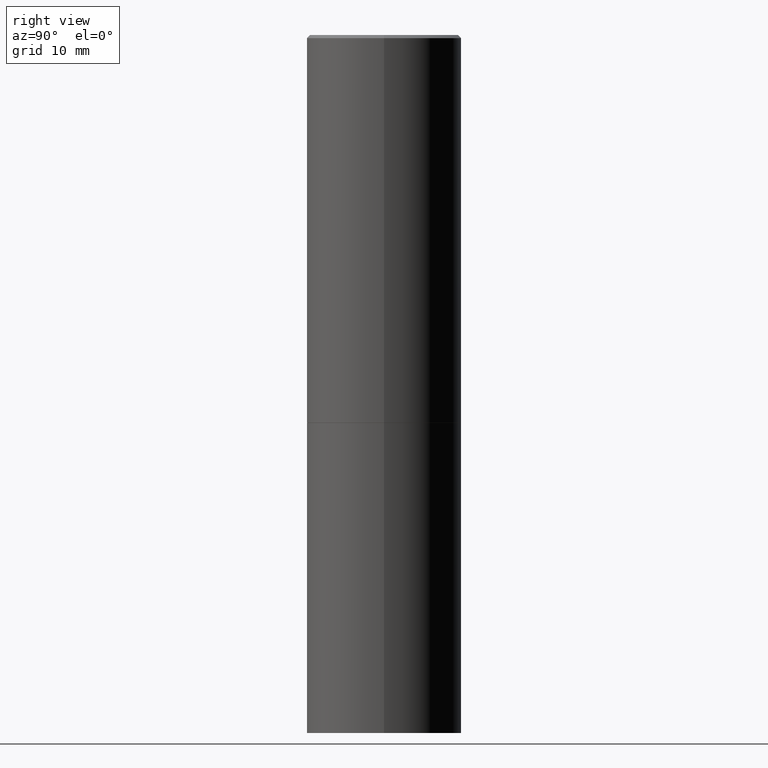
[diagram: clean part render]
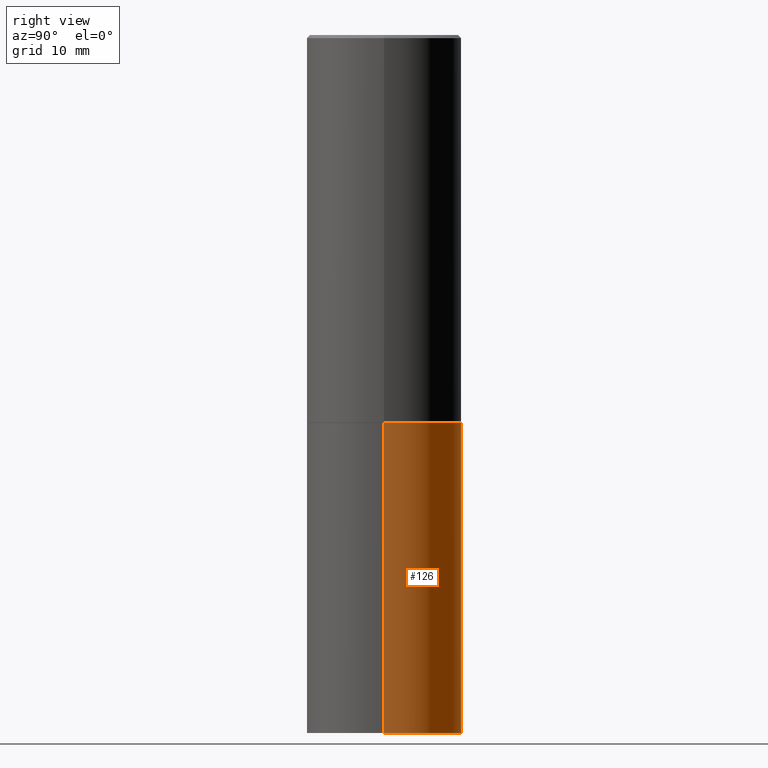
[diagram: same view with one face highlighted and labeled with its STEP entity id]
A machine part, right view. The second image highlights one B-rep face of the part: STEP entity #126.
In plain terms, the highlighted cylindrical surface (partial cylindrical patch) has radius 12.7 mm, axis along (-0, 0, 1).
Its self-contained STEP definition (entity closure, byte-faithful):
#4 = AXIS2_PLACEMENT_3D ( 'NONE', #29, #66, #61 ) ;
#7 = CARTESIAN_POINT ( 'NONE',  ( -0.5000000000000000000, -8.667471007150509990E-15, -2.500000000000000000 ) ) ;
#20 = CARTESIAN_POINT ( 'NONE',  ( 0.5000000000000000000, -1.222018468595099830E-14, -2.500000000000000000 ) ) ;
#25 = DIRECTION ( 'NONE',  ( -2.445468806185136877E-29, 3.491481338843145188E-15, 1.000000000000000000 ) ) ;
#29 = CARTESIAN_POINT ( 'NONE',  ( 6.113672015462842613E-29, -8.728703347107864943E-15, -2.500000000000000000 ) ) ;
#32 = VECTOR ( 'NONE', #107, 39.37007874015748143 ) ;
#40 = EDGE_LOOP ( 'NONE', ( #150, #68, #359, #82 ) ) ;
#48 = CARTESIAN_POINT ( 'NONE',  ( 0.000000000000000000, 0.000000000000000000, 0.000000000000000000 ) ) ;
#52 = VERTEX_POINT ( 'NONE', #7 ) ;
#56 = AXIS2_PLACEMENT_3D ( 'NONE', #170, #173, #175 ) ;
#61 = DIRECTION ( 'NONE',  ( 1.000000000000000000, -6.982962677686269077E-15, 0.000000000000000000 ) ) ;
#66 = DIRECTION ( 'NONE',  ( -2.445468806185136597E-29, 3.491481338843145583E-15, 1.000000000000000000 ) ) ;
#68 = ORIENTED_EDGE ( 'NONE', *, *, #123, .T. ) ;
#76 = DIRECTION ( 'NONE',  ( -2.445468806185136597E-29, 3.491481338843145583E-15, 1.000000000000000000 ) ) ;
#82 = ORIENTED_EDGE ( 'NONE', *, *, #321, .F. ) ;
#107 = DIRECTION ( 'NONE',  ( -2.445468806185136877E-29, 3.491481338843145188E-15, 1.000000000000000000 ) ) ;
#108 = CARTESIAN_POINT ( 'NONE',  ( -0.5000000000000000000, -8.667471007150509990E-15, -4.500000000000000000 ) ) ;
#123 = EDGE_CURVE ( 'NONE', #246, #52, #189, .T. ) ;
#126 = ADVANCED_FACE ( 'NONE', ( #134 ), #192, .T. ) ;
#133 = CARTESIAN_POINT ( 'NONE',  ( 0.5000000000000000000, -1.920314736363729025E-14, -4.500000000000000000 ) ) ;
#134 = FACE_OUTER_BOUND ( 'NONE', #40, .T. ) ;
#138 = CIRCLE ( 'NONE', #4, 0.5000000000000000000 ) ;
#150 = ORIENTED_EDGE ( 'NONE', *, *, #344, .T. ) ;
#162 = CARTESIAN_POINT ( 'NONE',  ( -0.5000000000000000000, 3.552713678800500929E-15, -2.459467545127452891E-29 ) ) ;
#169 = LINE ( 'NONE', #301, #222 ) ;
#170 = CARTESIAN_POINT ( 'NONE',  ( 1.100460962783311469E-28, -1.571166602479415690E-14, -4.500000000000000000 ) ) ;
#173 = DIRECTION ( 'NONE',  ( -2.445468806185136597E-29, 3.491481338843145583E-15, 1.000000000000000000 ) ) ;
#175 = DIRECTION ( 'NONE',  ( 1.000000000000000000, -6.982962677686266711E-15, 0.000000000000000000 ) ) ;
#183 = AXIS2_PLACEMENT_3D ( 'NONE', #48, #76, #358 ) ;
#189 = LINE ( 'NONE', #162, #32 ) ;
#192 = CYLINDRICAL_SURFACE ( 'NONE', #183, 0.5000000000000000000 ) ;
#211 = VERTEX_POINT ( 'NONE', #20 ) ;
#214 = VERTEX_POINT ( 'NONE', #133 ) ;
#222 = VECTOR ( 'NONE', #25, 39.37007874015748143 ) ;
#246 = VERTEX_POINT ( 'NONE', #108 ) ;
#301 = CARTESIAN_POINT ( 'NONE',  ( 0.5000000000000000000, -3.491481338843133355E-15, 2.438088387897967896E-29 ) ) ;
#313 = CIRCLE ( 'NONE', #56, 0.5000000000000000000 ) ;
#321 = EDGE_CURVE ( 'NONE', #214, #211, #169, .T. ) ;
#339 = EDGE_CURVE ( 'NONE', #211, #52, #138, .T. ) ;
#344 = EDGE_CURVE ( 'NONE', #214, #246, #313, .T. ) ;
#358 = DIRECTION ( 'NONE',  ( 1.000000000000000000, -6.982962677686266711E-15, 4.876176775795935793E-29 ) ) ;
#359 = ORIENTED_EDGE ( 'NONE', *, *, #339, .F. ) ;